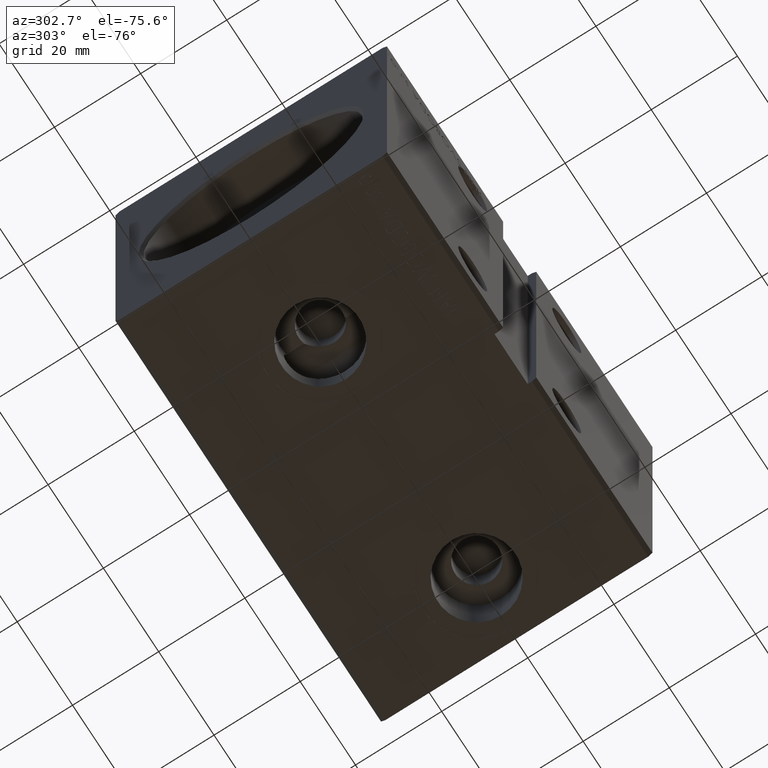
[diagram: clean part render]
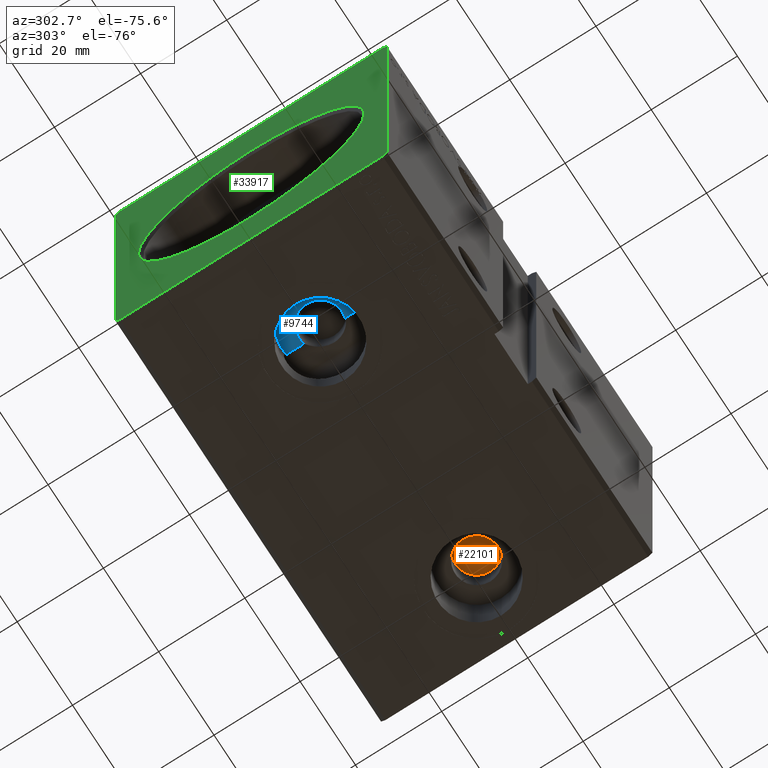
[diagram: same view with three faces highlighted in distinct colors, each labeled with its STEP entity id]
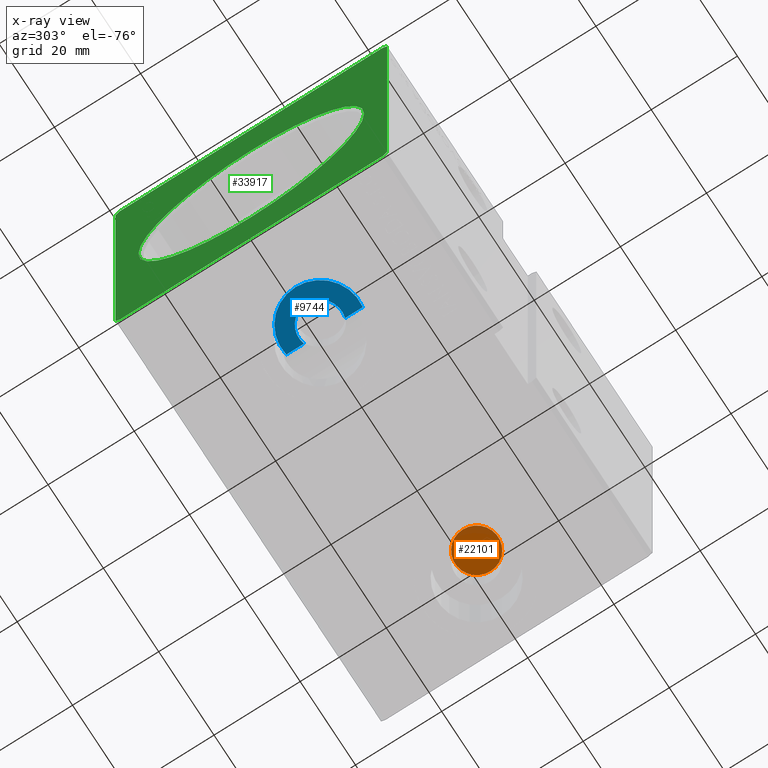
[diagram: x-ray of the same camera — body ghosted, the three highlighted faces saturated]
A machine part, auxiliary view with three faces highlighted in distinct colors.
The next image is the same camera in x-ray (body ghosted, the three faces saturated) — at least one of them is partly hidden behind the body in this view.
Their STEP definitions:

[orange] entity #22101 — the highlighted planar face has unit normal (0, 0, -1).
#1316 = DIRECTION ( 'NONE',  ( -1.000000000000000000, 0.000000000000000000, 0.000000000000000000 ) ) ;
#2468 = AXIS2_PLACEMENT_3D ( 'NONE', #33188, #20410, #39773 ) ;
#2658 = ORIENTED_EDGE ( 'NONE', *, *, #15372, .T. ) ;
#3399 = CARTESIAN_POINT ( 'NONE',  ( 81.50000000000000000, -9.911387943591445357E-15, -20.90000000000000924 ) ) ;
#10206 = DIRECTION ( 'NONE',  ( 0.000000000000000000, 0.000000000000000000, -1.000000000000000000 ) ) ;
#11979 = CIRCLE ( 'NONE', #2468, 5.000000000000004441 ) ;
#13902 = CARTESIAN_POINT ( 'NONE',  ( 81.50000000000000000, -9.911387943591445357E-15, -20.90000000000000924 ) ) ;
#15372 = EDGE_CURVE ( 'NONE', #40328, #27615, #32249, .T. ) ;
#20319 = EDGE_CURVE ( 'NONE', #27615, #40328, #11979, .T. ) ;
#20410 = DIRECTION ( 'NONE',  ( 0.000000000000000000, 0.000000000000000000, -1.000000000000000000 ) ) ;
#20698 = AXIS2_PLACEMENT_3D ( 'NONE', #13902, #27506, #1316 ) ;
#22101 = ADVANCED_FACE ( 'NONE', ( #32561 ), #26397, .T. ) ;
#23198 = DIRECTION ( 'NONE',  ( -1.000000000000000000, 0.000000000000000000, -0.000000000000000000 ) ) ;
#24218 = CARTESIAN_POINT ( 'NONE',  ( 86.50000000000001421, -9.299064544017768038E-15, -20.90000000000000924 ) ) ;
#24959 = AXIS2_PLACEMENT_3D ( 'NONE', #3399, #10206, #23198 ) ;
#26397 = PLANE ( 'NONE',  #24959 ) ;
#27506 = DIRECTION ( 'NONE',  ( 0.000000000000000000, 0.000000000000000000, -1.000000000000000000 ) ) ;
#27615 = VERTEX_POINT ( 'NONE', #36327 ) ;
#32249 = CIRCLE ( 'NONE', #20698, 5.000000000000004441 ) ;
#32561 = FACE_OUTER_BOUND ( 'NONE', #37164, .T. ) ;
#33188 = CARTESIAN_POINT ( 'NONE',  ( 81.50000000000000000, -9.911387943591445357E-15, -20.90000000000000924 ) ) ;
#36327 = CARTESIAN_POINT ( 'NONE',  ( 76.50000000000000000, -9.911387943591445357E-15, -20.90000000000000924 ) ) ;
#37164 = EDGE_LOOP ( 'NONE', ( #41402, #2658 ) ) ;
#39773 = DIRECTION ( 'NONE',  ( -1.000000000000000000, 0.000000000000000000, 0.000000000000000000 ) ) ;
#40328 = VERTEX_POINT ( 'NONE', #24218 ) ;
#41402 = ORIENTED_EDGE ( 'NONE', *, *, #20319, .T. ) ;

[blue] entity #9744 — the highlighted planar face has unit normal (0, 0, -1).
#15 = AXIS2_PLACEMENT_3D ( 'NONE', #4283, #20459, #3867 ) ;
#423 = DIRECTION ( 'NONE',  ( -1.000000000000000000, 0.000000000000000000, -0.000000000000000000 ) ) ;
#1277 = VERTEX_POINT ( 'NONE', #26620 ) ;
#1490 = VERTEX_POINT ( 'NONE', #32534 ) ;
#1656 = DIRECTION ( 'NONE',  ( -1.000000000000000000, 0.000000000000000000, 0.000000000000000000 ) ) ;
#2123 = VERTEX_POINT ( 'NONE', #4680 ) ;
#3186 = VERTEX_POINT ( 'NONE', #9635 ) ;
#3206 = CARTESIAN_POINT ( 'NONE',  ( 26.49750069405890684, 8.874541772468765188, -28.80000000000000782 ) ) ;
#3412 = DIRECTION ( 'NONE',  ( 0.000000000000000000, 0.000000000000000000, -1.000000000000000000 ) ) ;
#3867 = DIRECTION ( 'NONE',  ( -1.000000000000000000, 0.000000000000000000, 0.000000000000000000 ) ) ;
#4283 = CARTESIAN_POINT ( 'NONE',  ( 25.00000000000000000, -2.665753871451547918E-15, -28.80000000000000782 ) ) ;
#4582 = AXIS2_PLACEMENT_3D ( 'NONE', #20713, #14315, #31345 ) ;
#4680 = CARTESIAN_POINT ( 'NONE',  ( 26.49750069405890684, -8.874541772468772294, -28.80000000000000782 ) ) ;
#5548 = VECTOR ( 'NONE', #20415, 1000.000000000000000 ) ;
#5638 = ORIENTED_EDGE ( 'NONE', *, *, #27141, .T. ) ;
#6406 = EDGE_CURVE ( 'NONE', #24703, #3186, #27217, .T. ) ;
#6536 = CIRCLE ( 'NONE', #26267, 9.000000000000001776 ) ;
#7057 = LINE ( 'NONE', #20265, #16106 ) ;
#8438 = CIRCLE ( 'NONE', #17295, 5.000000000000000888 ) ;
#9112 = EDGE_CURVE ( 'NONE', #1490, #1277, #8438, .T. ) ;
#9635 = CARTESIAN_POINT ( 'NONE',  ( 26.49750069405890684, 4.770481282983204174, -28.80000000000000782 ) ) ;
#9744 = ADVANCED_FACE ( 'NONE', ( #39998 ), #36403, .T. ) ;
#10824 = CARTESIAN_POINT ( 'NONE',  ( 25.00000000000000000, -2.665753871451547918E-15, -28.80000000000000782 ) ) ;
#11464 = CARTESIAN_POINT ( 'NONE',  ( 26.49750069405890684, 31.50000000000002842, -28.80000000000000782 ) ) ;
#14315 = DIRECTION ( 'NONE',  ( 0.000000000000000000, 0.000000000000000000, -1.000000000000000000 ) ) ;
#14859 = DIRECTION ( 'NONE',  ( 0.000000000000000000, 0.000000000000000000, -1.000000000000000000 ) ) ;
#16106 = VECTOR ( 'NONE', #41974, 1000.000000000000000 ) ;
#16133 = CIRCLE ( 'NONE', #4582, 9.000000000000001776 ) ;
#16609 = CARTESIAN_POINT ( 'NONE',  ( 25.00000000000000000, -2.665753871451547918E-15, -28.80000000000000782 ) ) ;
#16987 = ORIENTED_EDGE ( 'NONE', *, *, #9112, .F. ) ;
#17295 = AXIS2_PLACEMENT_3D ( 'NONE', #18652, #35038, #21418 ) ;
#18652 = CARTESIAN_POINT ( 'NONE',  ( 25.00000000000000000, -2.665753871451547918E-15, -28.80000000000000782 ) ) ;
#20265 = CARTESIAN_POINT ( 'NONE',  ( 26.49750069405890684, 31.50000000000002842, -28.80000000000000782 ) ) ;
#20368 = EDGE_CURVE ( 'NONE', #2123, #39827, #6536, .T. ) ;
#20415 = DIRECTION ( 'NONE',  ( -0.000000000000000000, -1.000000000000000000, -5.507058653894625853E-17 ) ) ;
#20459 = DIRECTION ( 'NONE',  ( 0.000000000000000000, 0.000000000000000000, -1.000000000000000000 ) ) ;
#20713 = CARTESIAN_POINT ( 'NONE',  ( 25.00000000000000000, -2.665753871451547918E-15, -28.80000000000000782 ) ) ;
#21369 = AXIS2_PLACEMENT_3D ( 'NONE', #16609, #3412, #423 ) ;
#21418 = DIRECTION ( 'NONE',  ( -1.000000000000000000, 0.000000000000000000, 0.000000000000000000 ) ) ;
#21750 = EDGE_CURVE ( 'NONE', #1490, #2123, #7057, .T. ) ;
#24703 = VERTEX_POINT ( 'NONE', #3206 ) ;
#26267 = AXIS2_PLACEMENT_3D ( 'NONE', #10824, #14859, #1656 ) ;
#26620 = CARTESIAN_POINT ( 'NONE',  ( 20.00000000000000000, -2.665753871451547918E-15, -28.80000000000000782 ) ) ;
#27141 = EDGE_CURVE ( 'NONE', #39827, #24703, #16133, .T. ) ;
#27217 = LINE ( 'NONE', #11464, #5548 ) ;
#27782 = ORIENTED_EDGE ( 'NONE', *, *, #21750, .T. ) ;
#28065 = EDGE_CURVE ( 'NONE', #1277, #3186, #29923, .T. ) ;
#29923 = CIRCLE ( 'NONE', #15, 5.000000000000000888 ) ;
#30810 = ORIENTED_EDGE ( 'NONE', *, *, #6406, .T. ) ;
#31345 = DIRECTION ( 'NONE',  ( -1.000000000000000000, 0.000000000000000000, 0.000000000000000000 ) ) ;
#32198 = EDGE_LOOP ( 'NONE', ( #38775, #5638, #30810, #37622, #16987, #27782 ) ) ;
#32534 = CARTESIAN_POINT ( 'NONE',  ( 26.49750069405890684, -4.770481282983208615, -28.80000000000000782 ) ) ;
#32851 = CARTESIAN_POINT ( 'NONE',  ( 16.00000000000000000, -2.665753871451547918E-15, -28.80000000000000782 ) ) ;
#35038 = DIRECTION ( 'NONE',  ( 0.000000000000000000, 0.000000000000000000, -1.000000000000000000 ) ) ;
#36403 = PLANE ( 'NONE',  #21369 ) ;
#37622 = ORIENTED_EDGE ( 'NONE', *, *, #28065, .F. ) ;
#38775 = ORIENTED_EDGE ( 'NONE', *, *, #20368, .T. ) ;
#39827 = VERTEX_POINT ( 'NONE', #32851 ) ;
#39998 = FACE_OUTER_BOUND ( 'NONE', #32198, .T. ) ;
#41974 = DIRECTION ( 'NONE',  ( -0.000000000000000000, -1.000000000000000000, -5.507058653894625853E-17 ) ) ;

[green] entity #33917 — the highlighted planar face has unit normal (1, 0, 0).
#16 = DIRECTION ( 'NONE',  ( 1.000000000000000000, 0.000000000000000000, 0.000000000000000000 ) ) ;
#73 = ORIENTED_EDGE ( 'NONE', *, *, #41597, .F. ) ;
#456 = ORIENTED_EDGE ( 'NONE', *, *, #36175, .F. ) ;
#629 = CARTESIAN_POINT ( 'NONE',  ( 0.000000000000000000, 31.50000000000001421, 41.49999999999999289 ) ) ;
#1037 = LINE ( 'NONE', #37226, #40978 ) ;
#1195 = LINE ( 'NONE', #18228, #35893 ) ;
#1286 = ORIENTED_EDGE ( 'NONE', *, *, #12946, .F. ) ;
#1875 = VECTOR ( 'NONE', #25015, 1000.000000000000000 ) ;
#3288 = VERTEX_POINT ( 'NONE', #22850 ) ;
#3598 = CARTESIAN_POINT ( 'NONE',  ( 0.000000000000000000, 0.000000000000000000, 0.000000000000000000 ) ) ;
#5222 = CARTESIAN_POINT ( 'NONE',  ( 0.000000000000000000, -31.50000000000000000, -41.50000000000000711 ) ) ;
#5330 = EDGE_CURVE ( 'NONE', #17632, #29341, #9560, .T. ) ;
#5371 = ORIENTED_EDGE ( 'NONE', *, *, #26774, .F. ) ;
#5515 = CARTESIAN_POINT ( 'NONE',  ( 0.000000000000000000, 0.000000000000000000, 26.19999999999998863 ) ) ;
#5725 = LINE ( 'NONE', #8899, #36160 ) ;
#6498 = LINE ( 'NONE', #38852, #23375 ) ;
#7328 = CARTESIAN_POINT ( 'NONE',  ( 0.000000000000000000, -31.50000000000000000, 41.49999999999999289 ) ) ;
#7659 = VECTOR ( 'NONE', #18209, 1000.000000000000114 ) ;
#8810 = CARTESIAN_POINT ( 'NONE',  ( 0.000000000000000000, 30.50000000000001421, 42.49999999999999289 ) ) ;
#8899 = CARTESIAN_POINT ( 'NONE',  ( 0.000000000000000000, 31.50000000000001421, -41.50000000000000711 ) ) ;
#9560 = LINE ( 'NONE', #26589, #34750 ) ;
#9780 = DIRECTION ( 'NONE',  ( 0.000000000000000000, -0.7071067811865474617, 0.7071067811865474617 ) ) ;
#10700 = EDGE_CURVE ( 'NONE', #14642, #41029, #31586, .T. ) ;
#12946 = EDGE_CURVE ( 'NONE', #23599, #3288, #6498, .T. ) ;
#14373 = ORIENTED_EDGE ( 'NONE', *, *, #35124, .F. ) ;
#14642 = VERTEX_POINT ( 'NONE', #5515 ) ;
#16464 = DIRECTION ( 'NONE',  ( 1.000000000000000000, 0.000000000000000000, 0.000000000000000000 ) ) ;
#17091 = CARTESIAN_POINT ( 'NONE',  ( 0.000000000000000000, 31.50000000000001421, -41.50000000000000711 ) ) ;
#17579 = CARTESIAN_POINT ( 'NONE',  ( 0.000000000000000000, -30.50000000000000711, -42.50000000000000711 ) ) ;
#17632 = VERTEX_POINT ( 'NONE', #629 ) ;
#18209 = DIRECTION ( 'NONE',  ( 0.000000000000000000, 0.7071067811865451302, -0.7071067811865500152 ) ) ;
#18228 = CARTESIAN_POINT ( 'NONE',  ( 0.000000000000000000, -30.50000000000000355, 42.49999999999999289 ) ) ;
#18504 = DIRECTION ( 'NONE',  ( 0.000000000000000000, 0.000000000000000000, 1.000000000000000000 ) ) ;
#18655 = DIRECTION ( 'NONE',  ( 0.000000000000000000, -0.7071067811865462405, -0.7071067811865489050 ) ) ;
#18915 = CARTESIAN_POINT ( 'NONE',  ( 0.000000000000000000, -30.50000000000000711, -42.50000000000000711 ) ) ;
#19259 = ORIENTED_EDGE ( 'NONE', *, *, #10700, .T. ) ;
#19628 = DIRECTION ( 'NONE',  ( 0.000000000000000000, 0.000000000000000000, -1.000000000000000000 ) ) ;
#20663 = VERTEX_POINT ( 'NONE', #17579 ) ;
#22034 = VERTEX_POINT ( 'NONE', #28941 ) ;
#22436 = DIRECTION ( 'NONE',  ( 0.000000000000000000, 0.000000000000000000, -1.000000000000000000 ) ) ;
#22624 = AXIS2_PLACEMENT_3D ( 'NONE', #3598, #26177, #26795 ) ;
#22850 = CARTESIAN_POINT ( 'NONE',  ( 0.000000000000000000, -31.50000000000000000, -41.50000000000000711 ) ) ;
#22865 = FACE_OUTER_BOUND ( 'NONE', #23758, .T. ) ;
#23182 = CARTESIAN_POINT ( 'NONE',  ( 0.000000000000000000, 3.208574613766063722E-15, -26.19999999999998863 ) ) ;
#23339 = VECTOR ( 'NONE', #38282, 1000.000000000000000 ) ;
#23375 = VECTOR ( 'NONE', #24668, 1000.000000000000000 ) ;
#23599 = VERTEX_POINT ( 'NONE', #7328 ) ;
#23758 = EDGE_LOOP ( 'NONE', ( #31303, #36210, #14373, #456, #73, #1286, #28507, #5371 ) ) ;
#24025 = EDGE_CURVE ( 'NONE', #34526, #23599, #1195, .T. ) ;
#24668 = DIRECTION ( 'NONE',  ( 0.000000000000000000, 0.000000000000000000, -1.000000000000000000 ) ) ;
#25015 = DIRECTION ( 'NONE',  ( 0.000000000000000000, -1.000000000000000000, 0.000000000000000000 ) ) ;
#25923 = CARTESIAN_POINT ( 'NONE',  ( 0.000000000000000000, -30.50000000000000355, 42.49999999999999289 ) ) ;
#26177 = DIRECTION ( 'NONE',  ( 1.000000000000000000, 0.000000000000000000, 0.000000000000000000 ) ) ;
#26589 = CARTESIAN_POINT ( 'NONE',  ( 0.000000000000000000, 31.50000000000001421, 41.49999999999999289 ) ) ;
#26774 = EDGE_CURVE ( 'NONE', #29341, #34526, #33951, .T. ) ;
#26795 = DIRECTION ( 'NONE',  ( 0.000000000000000000, 0.000000000000000000, -1.000000000000000000 ) ) ;
#27108 = VERTEX_POINT ( 'NONE', #17091 ) ;
#27383 = CIRCLE ( 'NONE', #22624, 26.19999999999998863 ) ;
#28507 = ORIENTED_EDGE ( 'NONE', *, *, #24025, .F. ) ;
#28618 = LINE ( 'NONE', #5222, #7659 ) ;
#28941 = CARTESIAN_POINT ( 'NONE',  ( 0.000000000000000000, 30.50000000000001776, -42.50000000000000711 ) ) ;
#29229 = CARTESIAN_POINT ( 'NONE',  ( 0.000000000000000000, 0.000000000000000000, 0.000000000000000000 ) ) ;
#29341 = VERTEX_POINT ( 'NONE', #34715 ) ;
#29532 = AXIS2_PLACEMENT_3D ( 'NONE', #29819, #16, #19628 ) ;
#29819 = CARTESIAN_POINT ( 'NONE',  ( 0.000000000000000000, 0.000000000000000000, 0.000000000000000000 ) ) ;
#31303 = ORIENTED_EDGE ( 'NONE', *, *, #5330, .F. ) ;
#31586 = CIRCLE ( 'NONE', #29532, 26.19999999999998863 ) ;
#32676 = EDGE_CURVE ( 'NONE', #27108, #17632, #5725, .T. ) ;
#33917 = ADVANCED_FACE ( 'NONE', ( #41585, #22865 ), #35844, .F. ) ;
#33951 = LINE ( 'NONE', #8810, #1875 ) ;
#34029 = DIRECTION ( 'NONE',  ( 0.000000000000000000, 0.7071067811865462405, 0.7071067811865489050 ) ) ;
#34149 = AXIS2_PLACEMENT_3D ( 'NONE', #29229, #16464, #22436 ) ;
#34526 = VERTEX_POINT ( 'NONE', #25923 ) ;
#34715 = CARTESIAN_POINT ( 'NONE',  ( 0.000000000000000000, 30.50000000000001421, 42.49999999999999289 ) ) ;
#34750 = VECTOR ( 'NONE', #9780, 1000.000000000000114 ) ;
#35124 = EDGE_CURVE ( 'NONE', #22034, #27108, #1037, .T. ) ;
#35844 = PLANE ( 'NONE',  #34149 ) ;
#35893 = VECTOR ( 'NONE', #18655, 999.9999999999998863 ) ;
#36160 = VECTOR ( 'NONE', #18504, 1000.000000000000000 ) ;
#36175 = EDGE_CURVE ( 'NONE', #20663, #22034, #37859, .T. ) ;
#36210 = ORIENTED_EDGE ( 'NONE', *, *, #32676, .F. ) ;
#36230 = ORIENTED_EDGE ( 'NONE', *, *, #41102, .T. ) ;
#37226 = CARTESIAN_POINT ( 'NONE',  ( 0.000000000000000000, 30.50000000000001776, -42.50000000000000711 ) ) ;
#37859 = LINE ( 'NONE', #18915, #23339 ) ;
#38282 = DIRECTION ( 'NONE',  ( 0.000000000000000000, 1.000000000000000000, 0.000000000000000000 ) ) ;
#38852 = CARTESIAN_POINT ( 'NONE',  ( 0.000000000000000000, -31.50000000000000000, 41.49999999999999289 ) ) ;
#39659 = EDGE_LOOP ( 'NONE', ( #19259, #36230 ) ) ;
#40978 = VECTOR ( 'NONE', #34029, 999.9999999999998863 ) ;
#41029 = VERTEX_POINT ( 'NONE', #23182 ) ;
#41102 = EDGE_CURVE ( 'NONE', #41029, #14642, #27383, .T. ) ;
#41585 = FACE_BOUND ( 'NONE', #39659, .T. ) ;
#41597 = EDGE_CURVE ( 'NONE', #3288, #20663, #28618, .T. ) ;